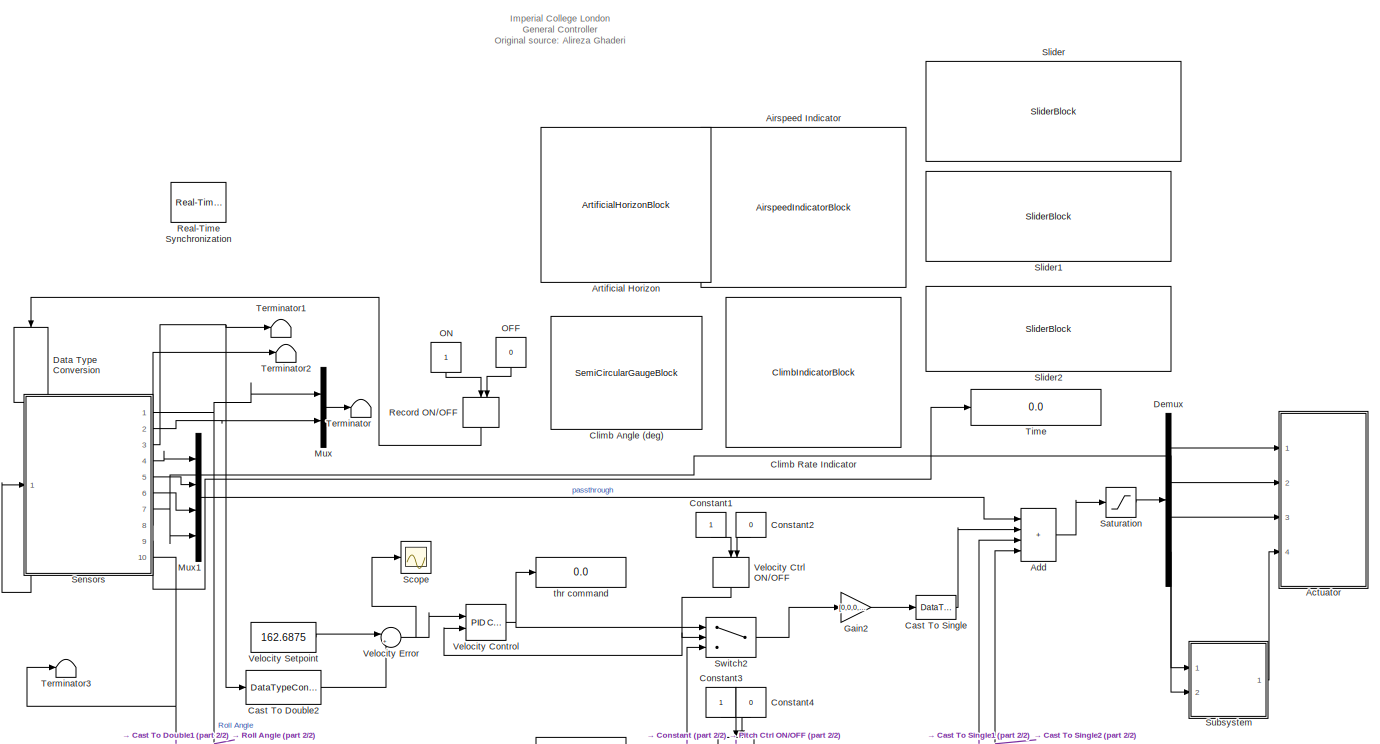
[diagram: root canvas - part 1/2, full width, middle band]
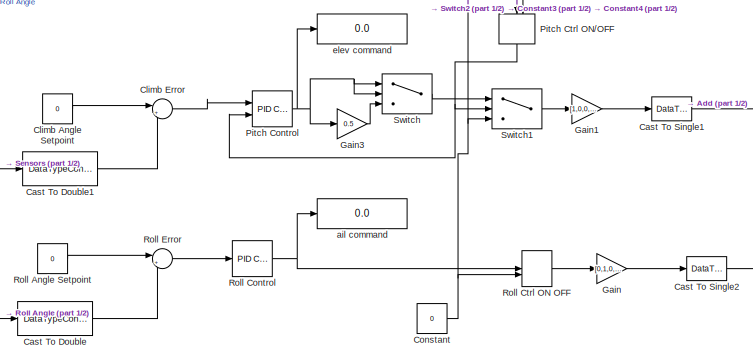
[diagram: root canvas - part 2/2, bottom center region]
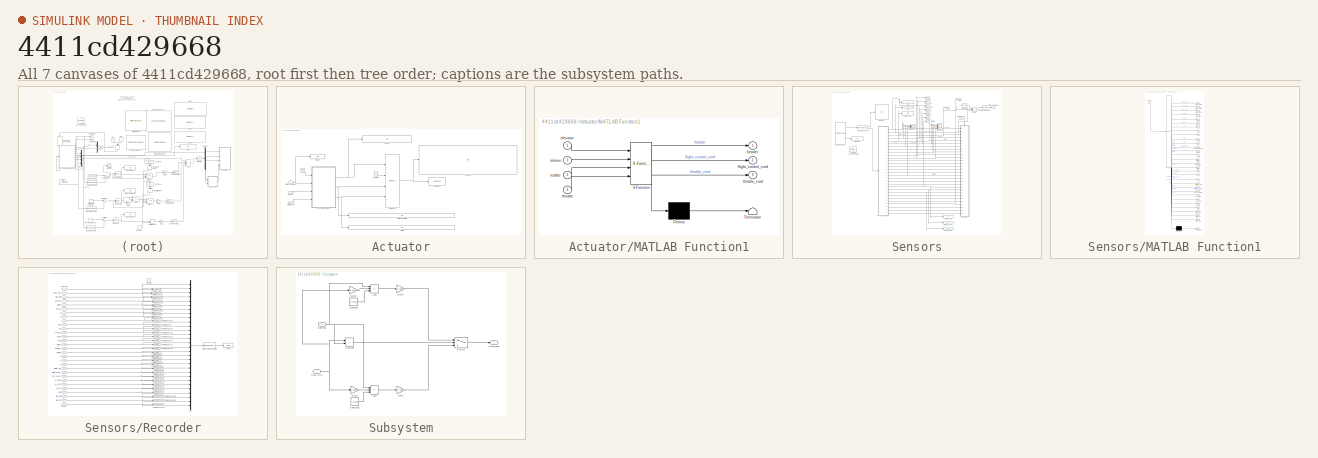
[diagram: thumbnail index - all 7 canvases of the model, root first then tree order]
MODEL slx_4411cd429668
KIND model
CONFIG AbsTol = auto
CONFIG EnableMultiTasking = off
CONFIG FixedStep = auto
CONFIG MaxStep = auto
CONFIG MinStep = auto
CONFIG RelTol = 1e-3
CONFIG SampleTimeConstraint = Unconstrained
CONFIG SolverName = ode45
CONFIG StartTime = 0.0
CONFIG StopTime = inf
BLOCK [SubSystem] Actuator
  Ports = [4]
  RequestExecContextInheritance = off
BLOCK [Constant] Actuator/1 byte [0]
  OutDataTypeStr = uint8
  Value = [48]
BLOCK [Inport] Actuator/Aileron Command
  Port = 2
BLOCK [Reference] Actuator/Byte Pack  REF=etargetslib/Byte Pack
  Ports = [4, 1]
  SourceBlock = etargetslib/Byte Pack
  SourceProductBaseCode = ME
  SourceType = Byte pack
BLOCK [Display] Actuator/Display
  Decimation = 1
  Ports = [1]
BLOCK [SubSystem] Actuator/MATLAB Function1
  ErrorFcn = Stateflow.Translate.translate
  PermitHierarchicalResolution = ExplicitOnly
  Ports = [4, 3]
  RequestExecContextInheritance = off
  SFBlockType = MATLAB Function
  TreatAsAtomicUnit = on
BLOCK [Demux] Actuator/MATLAB Function1/ Demux 
  Outputs = 1
  Ports = [1, 1]
BLOCK [S-Function] Actuator/MATLAB Function1/ SFunction 
  EnableBusSupport = on
  FunctionName = sf_sfun
  PortCounts = [4 4]
  Ports = [4, 4]
  SFcnIsStateOwnerBlock = off
  SFunctionDeploymentMode = off
  Tag = Stateflow S-Function 1
BLOCK [Terminator] Actuator/MATLAB Function1/ Terminator 
BLOCK [Inport] Actuator/MATLAB Function1/aileron
  Port = 2
BLOCK [Inport] Actuator/MATLAB Function1/elevator
BLOCK [Outport] Actuator/MATLAB Function1/flight_control_cmd
  Port = 2
BLOCK [Outport] Actuator/MATLAB Function1/header
BLOCK [Inport] Actuator/MATLAB Function1/rudder
  Port = 3
BLOCK [Inport] Actuator/MATLAB Function1/throttle
  Port = 4
BLOCK [Outport] Actuator/MATLAB Function1/throttle_cmd
  Port = 3
BLOCK [Display] Actuator/Packet
  Decimation = 1
  Ports = [1]
BLOCK [Inport] Actuator/Rudder 
  Port = 3
BLOCK [Display] Actuator/Surface Controls
  Decimation = 1
  Ports = [1]
BLOCK [Display] Actuator/Throttle
  Decimation = 1
  Ports = [1]
BLOCK [Inport] Actuator/Throttle_cmd
  Port = 4
BLOCK [Reference] Actuator/UDP Send  REF=dspnetwork/UDP Send
  Ports = [1]
  SourceBlock = dspnetwork/UDP Send
  SourceProductBaseCode = SL
  SourceType = UDP Send
BLOCK [Inport] Actuator/elevator
BLOCK [Display] Actuator/header
  Decimation = 1
  Ports = [1]
BLOCK [Sum] Add
  IconShape = rectangular
  Inputs = ++++
  Ports = [4, 1]
BLOCK [AirspeedIndicatorBlock] Airspeed Indicator
  LabelPosition = Hide
  ScaleMax = 450
  ScaleMin = 0
BLOCK [ArtificialHorizonBlock] Artificial Horizon
  LabelPosition = Hide
BLOCK [DataTypeConversion] Cast To Double
  OutDataTypeStr = double
  RndMeth = Floor
  SaturateOnIntegerOverflow = off
BLOCK [DataTypeConversion] Cast To Double1
  OutDataTypeStr = double
  RndMeth = Floor
  SaturateOnIntegerOverflow = off
BLOCK [DataTypeConversion] Cast To Double2
  OutDataTypeStr = double
  RndMeth = Floor
  SaturateOnIntegerOverflow = off
BLOCK [DataTypeConversion] Cast To Single
  OutDataTypeStr = single
  RndMeth = Floor
  SaturateOnIntegerOverflow = off
BLOCK [DataTypeConversion] Cast To Single1
  OutDataTypeStr = single
  RndMeth = Floor
  SaturateOnIntegerOverflow = off
BLOCK [DataTypeConversion] Cast To Single2
  OutDataTypeStr = single
  RndMeth = Floor
  SaturateOnIntegerOverflow = off
BLOCK [SemiCircularGaugeBlock] Climb Angle (deg)
  ScaleMax = 20
  ScaleMin = -20
BLOCK [Constant] Climb Angle Setpoint
  Value = 0
BLOCK [Sum] Climb Error
  Inputs = |+-
  Ports = [2, 1]
BLOCK [ClimbIndicatorBlock] Climb Rate Indicator
BLOCK [Constant] Constant
  Value = 0
BLOCK [Constant] Constant1
  NameLocation = left
BLOCK [Constant] Constant2
  NameLocation = right
  Value = 0
BLOCK [Constant] Constant3
  NameLocation = left
BLOCK [Constant] Constant4
  NameLocation = right
  Value = 0
BLOCK [DataTypeConversion] Data Type Conversion
  NameLocation = left
  OutDataTypeStr = boolean
  RndMeth = Floor
  SaturateOnIntegerOverflow = off
BLOCK [Demux] Demux
  Ports = [1, 4]
BLOCK [Gain] Gain
  Gain = [0,1,0,0]
BLOCK [Gain] Gain1
  Gain = [1,0,0,0]
BLOCK [Gain] Gain2
  Gain = [0,0,0,1]
BLOCK [Gain] Gain3
  Gain = 0.5
BLOCK [Mux] Mux
  DisplayOption = bar
  Inputs = 2
  Ports = [2, 1]
BLOCK [Mux] Mux1
  DisplayOption = bar
  Ports = [4, 1]
BLOCK [Constant] OFF
  NameLocation = left
  Value = 0
BLOCK [Constant] ON
  NameLocation = left
BLOCK [Reference] Pitch Control  REF=pid_lib/PID Controller
  Ports = [2, 1]
  SourceBlock = pid_lib/PID Controller
  SourceProductBaseCode = SL
  SourceType = PID 1dof
BLOCK [ManualSwitch] Pitch Ctrl ON//OFF
  CurrentSetting = 0
  NameLocation = left
BLOCK [Reference] Real-Time Synchronization  REF=sldrtlib/Real-Time
Synchronization
  Ports = []
  SourceBlock = sldrtlib/Real-Time\nSynchronization
  SourceProductBaseCode = WT
  SourceType = Simulink Desktop Real-Time Synchronization
BLOCK [ManualSwitch] Record ON//OFF
  CurrentSetting = 0
  NameLocation = left
BLOCK [Constant] Roll Angle Setpoint
  Value = 0
BLOCK [Reference] Roll Control  REF=pid_lib/PID Controller
  Ports = [1, 1]
  SourceBlock = pid_lib/PID Controller
  SourceProductBaseCode = SL
  SourceType = PID 1dof
BLOCK [ManualSwitch] Roll Ctrl ON OFF
  CurrentSetting = 0
BLOCK [Sum] Roll Error
  Inputs = |+-
  Ports = [2, 1]
BLOCK [Saturate] Saturation
  LowerLimit = [-1,-1,-1,0]
  UpperLimit = [1,1,1,1]
BLOCK [Scope] Scope
  Floating = off
  NumInputPorts = 1
  Ports = [1]
  ScopeSpecificationString = Simulink.scopes.TimeScopeBlockCfg('CurrentConfiguration', extmgr.ConfigurationSet(extmgr.Configuration('Core','General UI',true),extmgr.Configuration('Core','Source UI',true),extmgr.Configuration('Sources','WiredSimulink',true,'DataLoggingVariableName','ScopeData1'),extmgr.Configuration('Visuals','Time Domain',true,'SerializedDisplays',{struct('MinYLimReal','202.38879','MaxYLimReal','205.94817','Y...<+1416ch>
BLOCK [SubSystem] Sensors
  Ports = [1, 10]
  RequestExecContextInheritance = off
BLOCK [Outport] Sensors/%aileron
  Port = 5
BLOCK [Outport] Sensors/%elevator
  Port = 4
BLOCK [Outport] Sensors/%rudder
  Port = 6
BLOCK [Outport] Sensors/%throttle
  Port = 7
BLOCK [Display] Sensors/Aileron Test
  Decimation = 1
  Ports = [1]
BLOCK [Reference] Sensors/Byte Unpack1  REF=etargetslib/Byte Unpack
  Ports = [1, 2]
  SourceBlock = etargetslib/Byte Unpack
  SourceProductBaseCode = ME
  SourceType = Byte Unpack
BLOCK [Outport] Sensors/Climb Angle (deg)
  Port = 10
BLOCK [Constant] Sensors/Constant
  Value = 0.00987473002
BLOCK [Inport] Sensors/Data Record
BLOCK [Scope] Sensors/Directional
  Floating = off
  NumInputPorts = 5
  Ports = [5]
  ScopeSpecificationString = Simulink.scopes.TimeScopeBlockCfg('CurrentConfiguration', extmgr.ConfigurationSet(extmgr.Configuration('Core','General UI',true),extmgr.Configuration('Core','Source UI',true),extmgr.Configuration('Sources','WiredSimulink',true,'DataLoggingVariableName','ScopeData1'),extmgr.Configuration('Visuals','Time Domain',true,'SerializedDisplays',{struct('MinYLimReal','-0.00000000043','MaxYLimReal','-0.00000...<+4094ch>
BLOCK [Display] Sensors/Display1
  Decimation = 1
  Ports = [1]
BLOCK [Product] Sensors/Divide
  Inputs = **/
  Ports = [3, 1]
BLOCK [Display] Sensors/Header
  Decimation = 1
  Ports = [1]
BLOCK [Display] Sensors/IAS
  Decimation = 1
  Ports = [1]
BLOCK [Scope] Sensors/Longitudinal
  Floating = off
  NumInputPorts = 4
  Ports = [4]
  ScopeSpecificationString = Simulink.scopes.TimeScopeBlockCfg('CurrentConfiguration', extmgr.ConfigurationSet(extmgr.Configuration('Core','General UI',true),extmgr.Configuration('Core','Source UI',true),extmgr.Configuration('Sources','WiredSimulink',true,'DataLoggingVariableName','ScopeData2'),extmgr.Configuration('Visuals','Time Domain',true,'SerializedDisplays',{struct('MinYLimReal','82.84377','MaxYLimReal','282.84377','YL...<+3446ch>
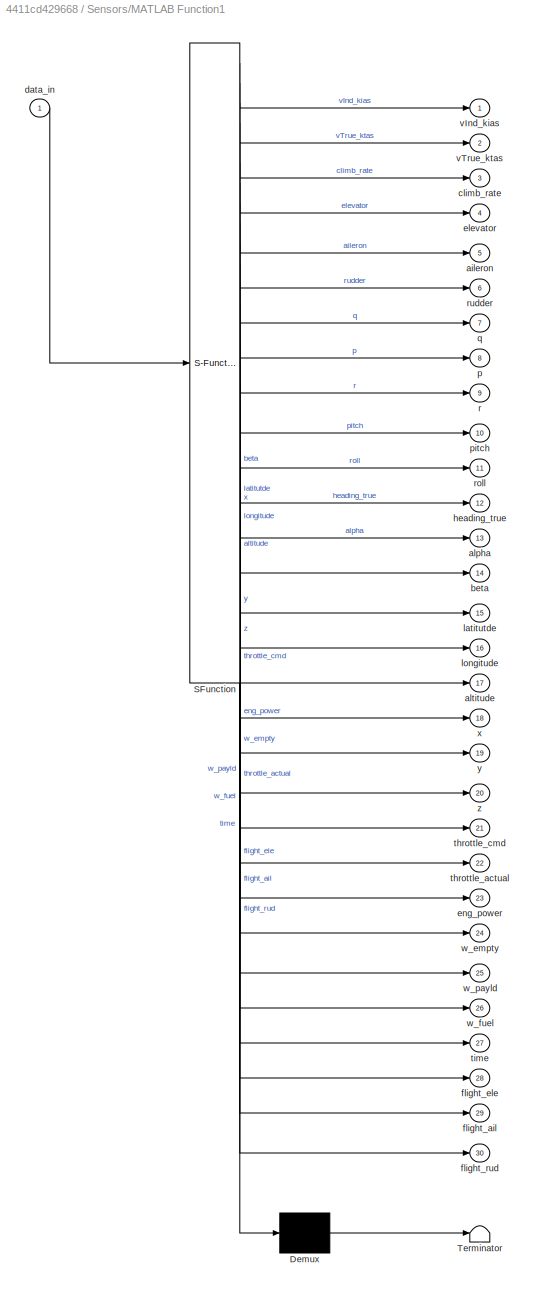
BLOCK [SubSystem] Sensors/MATLAB Function1
  ErrorFcn = Stateflow.Translate.translate
  PermitHierarchicalResolution = ExplicitOnly
  Ports = [1, 30]
  RequestExecContextInheritance = off
  SFBlockType = MATLAB Function
  TreatAsAtomicUnit = on
BLOCK [Demux] Sensors/MATLAB Function1/ Demux 
  Outputs = 1
  Ports = [1, 1]
BLOCK [S-Function] Sensors/MATLAB Function1/ SFunction 
  EnableBusSupport = on
  FunctionName = sf_sfun
  PortCounts = [1 31]
  Ports = [1, 31]
  SFcnIsStateOwnerBlock = off
  SFunctionDeploymentMode = off
  Tag = Stateflow S-Function 3
BLOCK [Terminator] Sensors/MATLAB Function1/ Terminator 
BLOCK [Outport] Sensors/MATLAB Function1/aileron
  Port = 5
BLOCK [Outport] Sensors/MATLAB Function1/alpha
  Port = 13
BLOCK [Outport] Sensors/MATLAB Function1/altitude
  Port = 17
BLOCK [Outport] Sensors/MATLAB Function1/beta
  Port = 14
BLOCK [Outport] Sensors/MATLAB Function1/climb_rate
  Port = 3
BLOCK [Inport] Sensors/MATLAB Function1/data_in
BLOCK [Outport] Sensors/MATLAB Function1/elevator
  Port = 4
BLOCK [Outport] Sensors/MATLAB Function1/eng_power
  Port = 23
BLOCK [Outport] Sensors/MATLAB Function1/flight_ail
  Port = 29
BLOCK [Outport] Sensors/MATLAB Function1/flight_ele
  Port = 28
BLOCK [Outport] Sensors/MATLAB Function1/flight_rud
  Port = 30
BLOCK [Outport] Sensors/MATLAB Function1/heading_true
  Port = 12
BLOCK [Outport] Sensors/MATLAB Function1/latitutde
  Port = 15
BLOCK [Outport] Sensors/MATLAB Function1/longitude
  Port = 16
BLOCK [Outport] Sensors/MATLAB Function1/p
  Port = 8
BLOCK [Outport] Sensors/MATLAB Function1/pitch
  Port = 10
BLOCK [Outport] Sensors/MATLAB Function1/q
  Port = 7
BLOCK [Outport] Sensors/MATLAB Function1/r
  Port = 9
BLOCK [Outport] Sensors/MATLAB Function1/roll
  Port = 11
BLOCK [Outport] Sensors/MATLAB Function1/rudder
  Port = 6
BLOCK [Outport] Sensors/MATLAB Function1/throttle_actual
  Port = 22
BLOCK [Outport] Sensors/MATLAB Function1/throttle_cmd
  Port = 21
  VectorParamsAs1DForOutWhenUnconnected = off
BLOCK [Outport] Sensors/MATLAB Function1/time
  Port = 27
BLOCK [Outport] Sensors/MATLAB Function1/vInd_kias
BLOCK [Outport] Sensors/MATLAB Function1/vTrue_ktas
  Port = 2
BLOCK [Outport] Sensors/MATLAB Function1/w_empty
  Port = 24
BLOCK [Outport] Sensors/MATLAB Function1/w_fuel
  Port = 26
BLOCK [Outport] Sensors/MATLAB Function1/w_payld
  Port = 25
BLOCK [Outport] Sensors/MATLAB Function1/x
  Port = 18
BLOCK [Outport] Sensors/MATLAB Function1/y
  Port = 19
BLOCK [Outport] Sensors/MATLAB Function1/z
  Port = 20
BLOCK [Reference] Sensors/Radians to Degrees  REF=simulink_extras/Transformations/Radians
to Degrees
  Ports = [1, 1]
  SourceBlock = simulink_extras/Transformations/Radians\nto Degrees
  SourceProductBaseCode = SL
  SourceType = RadiansToDegrees
BLOCK [Reference] Sensors/Real-Time Synchronization  REF=sldrtlib/Real-Time
Synchronization
  Ports = []
  SourceBlock = sldrtlib/Real-Time\nSynchronization
  SourceProductBaseCode = WT
  SourceType = Simulink Desktop Real-Time Synchronization
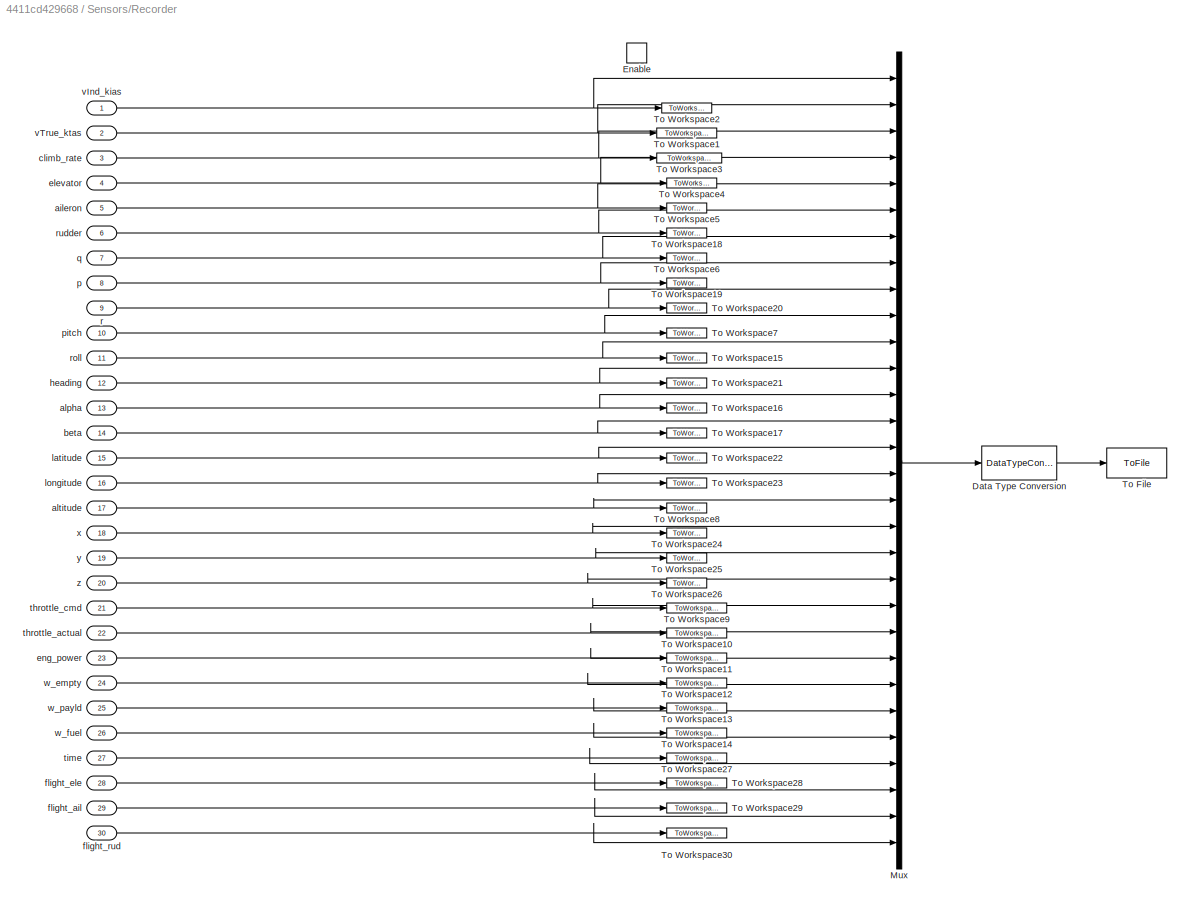
BLOCK [SubSystem] Sensors/Recorder
  Ports = [30, 0, 1]
  RequestExecContextInheritance = off
BLOCK [DataTypeConversion] Sensors/Recorder/Data Type Conversion
  OutDataTypeStr = double
  RndMeth = Floor
  SaturateOnIntegerOverflow = off
BLOCK [EnablePort] Sensors/Recorder/Enable
  Ports = []
BLOCK [Mux] Sensors/Recorder/Mux
  DisplayOption = bar
  Inputs = 30
  Ports = [30, 1]
BLOCK [ToFile] Sensors/Recorder/To File
  MatrixName = data
  Ports = [1]
  SaveFormat = Timeseries
BLOCK [ToWorkspace] Sensors/Recorder/To Workspace1
  FixptAsFi = on
  MaxDataPoints = inf
  Ports = [1]
  SampleTime = -1
  VariableName = vTrue_ktas
BLOCK [ToWorkspace] Sensors/Recorder/To Workspace10
  FixptAsFi = on
  MaxDataPoints = inf
  Ports = [1]
  SampleTime = -1
  VariableName = throttle_actual
BLOCK [ToWorkspace] Sensors/Recorder/To Workspace11
  FixptAsFi = on
  MaxDataPoints = inf
  Ports = [1]
  SampleTime = -1
  VariableName = eng_power
BLOCK [ToWorkspace] Sensors/Recorder/To Workspace12
  FixptAsFi = on
  MaxDataPoints = inf
  Ports = [1]
  SampleTime = -1
  VariableName = w_empty
BLOCK [ToWorkspace] Sensors/Recorder/To Workspace13
  FixptAsFi = on
  MaxDataPoints = inf
  Ports = [1]
  SampleTime = -1
  VariableName = w_payld
BLOCK [ToWorkspace] Sensors/Recorder/To Workspace14
  FixptAsFi = on
  MaxDataPoints = inf
  Ports = [1]
  SampleTime = -1
  VariableName = w_fuel
BLOCK [ToWorkspace] Sensors/Recorder/To Workspace15
  FixptAsFi = on
  MaxDataPoints = inf
  Ports = [1]
  SampleTime = -1
  VariableName = roll
BLOCK [ToWorkspace] Sensors/Recorder/To Workspace16
  FixptAsFi = on
  MaxDataPoints = inf
  Ports = [1]
  SampleTime = -1
  VariableName = alpha
BLOCK [ToWorkspace] Sensors/Recorder/To Workspace17
  FixptAsFi = on
  MaxDataPoints = inf
  Ports = [1]
  SampleTime = -1
  VariableName = beta
BLOCK [ToWorkspace] Sensors/Recorder/To Workspace18
  FixptAsFi = on
  MaxDataPoints = inf
  Ports = [1]
  SampleTime = -1
  VariableName = rudder
BLOCK [ToWorkspace] Sensors/Recorder/To Workspace19
  FixptAsFi = on
  MaxDataPoints = inf
  Ports = [1]
  SampleTime = -1
  VariableName = p
BLOCK [ToWorkspace] Sensors/Recorder/To Workspace2
  FixptAsFi = on
  MaxDataPoints = inf
  Ports = [1]
  SampleTime = -1
  VariableName = vInd_kias
BLOCK [ToWorkspace] Sensors/Recorder/To Workspace20
  FixptAsFi = on
  MaxDataPoints = inf
  Ports = [1]
  SampleTime = -1
  VariableName = r
BLOCK [ToWorkspace] Sensors/Recorder/To Workspace21
  FixptAsFi = on
  MaxDataPoints = inf
  Ports = [1]
  SampleTime = -1
  VariableName = heading
BLOCK [ToWorkspace] Sensors/Recorder/To Workspace22
  FixptAsFi = on
  MaxDataPoints = inf
  Ports = [1]
  SampleTime = -1
  VariableName = latitude
BLOCK [ToWorkspace] Sensors/Recorder/To Workspace23
  FixptAsFi = on
  MaxDataPoints = inf
  Ports = [1]
  SampleTime = -1
  VariableName = longitude
BLOCK [ToWorkspace] Sensors/Recorder/To Workspace24
  FixptAsFi = on
  MaxDataPoints = inf
  Ports = [1]
  SampleTime = -1
  VariableName = x
BLOCK [ToWorkspace] Sensors/Recorder/To Workspace25
  FixptAsFi = on
  MaxDataPoints = inf
  Ports = [1]
  SampleTime = -1
  VariableName = y
BLOCK [ToWorkspace] Sensors/Recorder/To Workspace26
  FixptAsFi = on
  MaxDataPoints = inf
  Ports = [1]
  SampleTime = -1
  VariableName = z
BLOCK [ToWorkspace] Sensors/Recorder/To Workspace27
  FixptAsFi = on
  MaxDataPoints = inf
  Ports = [1]
  SampleTime = -1
  VariableName = time
BLOCK [ToWorkspace] Sensors/Recorder/To Workspace28
  FixptAsFi = on
  MaxDataPoints = inf
  Ports = [1]
  SampleTime = -1
  VariableName = flight_ele
BLOCK [ToWorkspace] Sensors/Recorder/To Workspace29
  FixptAsFi = on
  MaxDataPoints = inf
  Ports = [1]
  SampleTime = -1
  VariableName = flight_ail
BLOCK [ToWorkspace] Sensors/Recorder/To Workspace3
  FixptAsFi = on
  MaxDataPoints = inf
  Ports = [1]
  SampleTime = -1
  VariableName = climb_rate
BLOCK [ToWorkspace] Sensors/Recorder/To Workspace30
  FixptAsFi = on
  MaxDataPoints = inf
  Ports = [1]
  SampleTime = -1
  VariableName = flight_rud
BLOCK [ToWorkspace] Sensors/Recorder/To Workspace4
  FixptAsFi = on
  MaxDataPoints = inf
  Ports = [1]
  SampleTime = -1
  VariableName = elevator
BLOCK [ToWorkspace] Sensors/Recorder/To Workspace5
  FixptAsFi = on
  MaxDataPoints = inf
  Ports = [1]
  SampleTime = -1
  VariableName = aileron
BLOCK [ToWorkspace] Sensors/Recorder/To Workspace6
  FixptAsFi = on
  MaxDataPoints = inf
  Ports = [1]
  SampleTime = -1
  VariableName = q
BLOCK [ToWorkspace] Sensors/Recorder/To Workspace7
  FixptAsFi = on
  MaxDataPoints = inf
  Ports = [1]
  SampleTime = -1
  VariableName = pitch
BLOCK [ToWorkspace] Sensors/Recorder/To Workspace8
  FixptAsFi = on
  MaxDataPoints = inf
  Ports = [1]
  SampleTime = -1
  VariableName = altitude
BLOCK [ToWorkspace] Sensors/Recorder/To Workspace9
  FixptAsFi = on
  MaxDataPoints = inf
  Ports = [1]
  SampleTime = -1
  VariableName = throttle_cmd
BLOCK [Inport] Sensors/Recorder/aileron
  Port = 5
BLOCK [Inport] Sensors/Recorder/alpha
  Port = 13
BLOCK [Inport] Sensors/Recorder/altitude
  Port = 17
BLOCK [Inport] Sensors/Recorder/beta
  Port = 14
BLOCK [Inport] Sensors/Recorder/climb_rate
  Port = 3
BLOCK [Inport] Sensors/Recorder/elevator
  Port = 4
BLOCK [Inport] Sensors/Recorder/eng_power
  Port = 23
BLOCK [Inport] Sensors/Recorder/flight_ail
  Port = 29
BLOCK [Inport] Sensors/Recorder/flight_ele
  Port = 28
BLOCK [Inport] Sensors/Recorder/flight_rud
  Port = 30
BLOCK [Inport] Sensors/Recorder/heading
  Port = 12
BLOCK [Inport] Sensors/Recorder/latitude
  Port = 15
BLOCK [Inport] Sensors/Recorder/longitude
  Port = 16
BLOCK [Inport] Sensors/Recorder/p
  Port = 8
BLOCK [Inport] Sensors/Recorder/pitch
  Port = 10
BLOCK [Inport] Sensors/Recorder/q
  Port = 7
BLOCK [Inport] Sensors/Recorder/r
  Port = 9
BLOCK [Inport] Sensors/Recorder/roll
  Port = 11
BLOCK [Inport] Sensors/Recorder/rudder
  Port = 6
BLOCK [Inport] Sensors/Recorder/throttle_actual
  Port = 22
BLOCK [Inport] Sensors/Recorder/throttle_cmd
  Port = 21
BLOCK [Inport] Sensors/Recorder/time
  Port = 27
BLOCK [Inport] Sensors/Recorder/vInd_kias
BLOCK [Inport] Sensors/Recorder/vTrue_ktas
  Port = 2
BLOCK [Inport] Sensors/Recorder/w_empty
  Port = 24
BLOCK [Inport] Sensors/Recorder/w_fuel
  Port = 26
BLOCK [Inport] Sensors/Recorder/w_payld
  Port = 25
BLOCK [Inport] Sensors/Recorder/x
  Port = 18
BLOCK [Inport] Sensors/Recorder/y
  Port = 19
BLOCK [Inport] Sensors/Recorder/z
  Port = 20
BLOCK [Outport] Sensors/RoC
  Port = 8
BLOCK [Display] Sensors/TAS
  Decimation = 1
  Ports = [1]
BLOCK [Outport] Sensors/Time
  Port = 9
BLOCK [Reference] Sensors/UDP Receive1  REF=dspnetwork/UDP Receive
  Ports = [0, 2]
  SourceBlock = dspnetwork/UDP Receive
  SourceProductBaseCode = SL
  SourceType = UDP Receive
BLOCK [Outport] Sensors/Velocity_kias
  Port = 3
BLOCK [Display] Sensors/eng_power
  Decimation = 1
  Ports = [1]
BLOCK [Outport] Sensors/pitch_deg
  Port = 2
BLOCK [Outport] Sensors/roll_deg
BLOCK [Display] Sensors/throttle_actual
  Decimation = 1
  Ports = [1]
BLOCK [Display] Sensors/throttle_cmd
  Decimation = 1
  Ports = [1]
BLOCK [SliderBlock] Slider
  ScaleMax = 400
  ScaleMin = 100
BLOCK [SliderBlock] Slider1
  ScaleMax = 10
  ScaleMin = -10
  TickInterval = 2
BLOCK [SliderBlock] Slider2
  ScaleMax = 45
  ScaleMin = -45
BLOCK [SubSystem] Subsystem
  Ports = [2, 1]
  RequestExecContextInheritance = off
BLOCK [Sum] Subsystem/Add
  IconShape = rectangular
  Inputs = +--
  Ports = [3, 1]
BLOCK [Sum] Subsystem/Add1
  IconShape = rectangular
  Inputs = +--
  Ports = [3, 1]
BLOCK [Outport] Subsystem/Command
BLOCK [Constant] Subsystem/Constant
  Value = 0.0264
BLOCK [Constant] Subsystem/Constant1
  Value = -0.3348
BLOCK [Inport] Subsystem/Desired
  Port = 2
BLOCK [Gain] Subsystem/Gain
  Gain = 1/1.0037
BLOCK [Gain] Subsystem/Gain1
  Gain = 0.0007
BLOCK [Gain] Subsystem/Gain2
  Gain = 1/0.9888
BLOCK [Gain] Subsystem/Gain3
  Gain = 0.0117
BLOCK [Sum] Subsystem/Subtract
  IconShape = rectangular
  Inputs = +-
  Ports = [2, 1]
BLOCK [Switch] Subsystem/Switch
  Criteria = u2 > Threshold
  InputSameDT = off
  SaturateOnIntegerOverflow = off
BLOCK [Inport] Subsystem/from Sim
BLOCK [Switch] Switch
  Criteria = u2 > Threshold
  InputSameDT = off
  SaturateOnIntegerOverflow = off
BLOCK [Switch] Switch1
  Criteria = u2 ~= 0
  InputSameDT = off
  SaturateOnIntegerOverflow = off
BLOCK [Switch] Switch2
  Criteria = u2 ~= 0
  InputSameDT = off
  SaturateOnIntegerOverflow = off
BLOCK [Terminator] Terminator
BLOCK [Terminator] Terminator1
BLOCK [Terminator] Terminator2
BLOCK [Terminator] Terminator3
BLOCK [Display] Time
  Decimation = 1
  Format = long
  Ports = [1]
BLOCK [Reference] Velocity Control  REF=pid_lib/PID Controller
  Ports = [2, 1]
  SourceBlock = pid_lib/PID Controller
  SourceProductBaseCode = SL
  SourceType = PID 1dof
BLOCK [ManualSwitch] Velocity Ctrl ON//OFF
  CurrentSetting = 0
  NameLocation = left
BLOCK [Sum] Velocity Error
  Inputs = |+-
  Ports = [2, 1]
BLOCK [Constant] Velocity Setpoint
  Value = 162.6875
BLOCK [Display] ail command
  Decimation = 1
  Ports = [1]
BLOCK [Display] elev command
  Decimation = 1
  Ports = [1]
BLOCK [Display] thr command
  Decimation = 1
  Ports = [1]
ANNOTATION (root): Imperial College London General Controller Original source: Alireza Ghaderi
LINE Actuator/1 byte [0]:1 -> Actuator/Byte Pack:2
NET Actuator/Aileron Command:1 -> Actuator/Display:1, Actuator/MATLAB Function1:2
NET Actuator/Byte Pack:1 -> Actuator/Packet:1, Actuator/UDP Send:1
NET Actuator/MATLAB Function1:1 -> Actuator/Byte Pack:1, Actuator/header:1
NET Actuator/MATLAB Function1:2 -> Actuator/Byte Pack:3, Actuator/Surface Controls:1
NET Actuator/MATLAB Function1:3 -> Actuator/Byte Pack:4, Actuator/Throttle:1
LINE Actuator/Rudder :1 -> Actuator/MATLAB Function1:3
LINE Actuator/Throttle_cmd:1 -> Actuator/MATLAB Function1:4
LINE Actuator/elevator:1 -> Actuator/MATLAB Function1:1
LINE Add:1 -> Saturation:1
LINE Cast To Double1:1 -> Climb Error:2
LINE Cast To Double2:1 -> Velocity Error:2
LINE Cast To Double:1 -> Roll Error:2
LINE Cast To Single1:1 -> Add:3
LINE Cast To Single2:1 -> Add:4
LINE Cast To Single:1 -> Add:2
LINE Climb Angle Setpoint:1 -> Climb Error:1
LINE Climb Error:1 -> Pitch Control:1
LINE Constant1:1 -> Velocity Ctrl ON//OFF:1
LINE Constant2:1 -> Velocity Ctrl ON//OFF:2
LINE Constant3:1 -> Pitch Ctrl ON//OFF:1
LINE Constant4:1 -> Pitch Ctrl ON//OFF:2
NET Constant:1 -> Roll Ctrl ON OFF:2, Switch1:3, Switch2:3
LINE Data Type Conversion:1 -> Sensors:1
LINE Demux:1 -> Actuator:1
LINE Demux:2 -> Actuator:2
LINE Demux:3 -> Actuator:3
LINE Demux:4 -> Subsystem:2
LINE Gain1:1 -> Cast To Single1:1
LINE Gain2:1 -> Cast To Single:1
LINE Gain3:1 -> Switch:3
LINE Gain:1 -> Cast To Single2:1
LINE Mux1:1 -> Add:1
LINE Mux:1 -> Terminator:1
LINE OFF:1 -> Record ON//OFF:2
LINE ON:1 -> Record ON//OFF:1
NET Pitch Control:1 -> Gain3:1, Switch:1, Switch:2, elev command:1
NET Pitch Ctrl ON//OFF:1 -> Pitch Control:2, Switch1:2
LINE Record ON//OFF:1 -> Data Type Conversion:1
LINE Roll Angle Setpoint:1 -> Roll Error:1
NET Roll Control:1 -> Roll Ctrl ON OFF:1, ail command:1
LINE Roll Ctrl ON OFF:1 -> Gain:1
LINE Roll Error:1 -> Roll Control:1
LINE Saturation:1 -> Demux:1
LINE Sensors/Byte Unpack1:1 -> Sensors/Header:1
LINE Sensors/Byte Unpack1:2 -> Sensors/MATLAB Function1:1
LINE Sensors/Constant:1 -> Sensors/Divide:1
LINE Sensors/Data Record:1 -> Sensors/Recorder:enable
LINE Sensors/Divide:1 -> Sensors/Radians to Degrees:1
NET Sensors/MATLAB Function1:1 -> Sensors/IAS:1, Sensors/Longitudinal:1, Sensors/Recorder:1, Sensors/Velocity_kias:1
NET Sensors/MATLAB Function1:10 -> Sensors/Recorder:10, Sensors/pitch_deg:1
NET Sensors/MATLAB Function1:11 -> Sensors/Directional:5, Sensors/Recorder:11, Sensors/roll_deg:1
LINE Sensors/MATLAB Function1:12 -> Sensors/Recorder:12
LINE Sensors/MATLAB Function1:13 -> Sensors/Recorder:13
LINE Sensors/MATLAB Function1:14 -> Sensors/Recorder:14
LINE Sensors/MATLAB Function1:15 -> Sensors/Recorder:15
LINE Sensors/MATLAB Function1:16 -> Sensors/Recorder:16
NET Sensors/MATLAB Function1:17 -> Sensors/Longitudinal:4, Sensors/Recorder:17
LINE Sensors/MATLAB Function1:18 -> Sensors/Recorder:18
LINE Sensors/MATLAB Function1:19 -> Sensors/Recorder:19
NET Sensors/MATLAB Function1:2 -> Sensors/Divide:3, Sensors/Recorder:2, Sensors/TAS:1
LINE Sensors/MATLAB Function1:20 -> Sensors/Recorder:20
NET Sensors/MATLAB Function1:21 -> Sensors/%throttle:1, Sensors/Recorder:21, Sensors/throttle_cmd:1
NET Sensors/MATLAB Function1:22 -> Sensors/Recorder:22, Sensors/throttle_actual:1
NET Sensors/MATLAB Function1:23 -> Sensors/Recorder:23, Sensors/eng_power:1
LINE Sensors/MATLAB Function1:24 -> Sensors/Recorder:24
LINE Sensors/MATLAB Function1:25 -> Sensors/Recorder:25
LINE Sensors/MATLAB Function1:26 -> Sensors/Recorder:26
NET Sensors/MATLAB Function1:27 -> Sensors/Recorder:27, Sensors/Time:1
LINE Sensors/MATLAB Function1:28 -> Sensors/Recorder:28
LINE Sensors/MATLAB Function1:29 -> Sensors/Recorder:29
NET Sensors/MATLAB Function1:3 -> Sensors/Divide:2, Sensors/Recorder:3, Sensors/RoC:1
LINE Sensors/MATLAB Function1:30 -> Sensors/Recorder:30
NET Sensors/MATLAB Function1:4 -> Sensors/%elevator:1, Sensors/Longitudinal:2, Sensors/Recorder:4
NET Sensors/MATLAB Function1:5 -> Sensors/%aileron:1, Sensors/Aileron Test:1, Sensors/Directional:1, Sensors/Recorder:5
NET Sensors/MATLAB Function1:6 -> Sensors/%rudder:1, Sensors/Directional:2, Sensors/Recorder:6
NET Sensors/MATLAB Function1:7 -> Sensors/Longitudinal:3, Sensors/Recorder:7
NET Sensors/MATLAB Function1:8 -> Sensors/Directional:3, Sensors/Recorder:8
NET Sensors/MATLAB Function1:9 -> Sensors/Directional:4, Sensors/Recorder:9
LINE Sensors/Radians to Degrees:1 -> Sensors/Climb Angle (deg):1
LINE Sensors/Recorder/Data Type Conversion:1 -> Sensors/Recorder/To File:1
LINE Sensors/Recorder/Mux:1 -> Sensors/Recorder/Data Type Conversion:1
NET Sensors/Recorder/aileron:1 -> Sensors/Recorder/Mux:5, Sensors/Recorder/To Workspace5:1
NET Sensors/Recorder/alpha:1 -> Sensors/Recorder/Mux:13, Sensors/Recorder/To Workspace16:1
NET Sensors/Recorder/altitude:1 -> Sensors/Recorder/Mux:17, Sensors/Recorder/To Workspace8:1
NET Sensors/Recorder/beta:1 -> Sensors/Recorder/Mux:14, Sensors/Recorder/To Workspace17:1
NET Sensors/Recorder/climb_rate:1 -> Sensors/Recorder/Mux:3, Sensors/Recorder/To Workspace3:1
NET Sensors/Recorder/elevator:1 -> Sensors/Recorder/Mux:4, Sensors/Recorder/To Workspace4:1
NET Sensors/Recorder/eng_power:1 -> Sensors/Recorder/Mux:23, Sensors/Recorder/To Workspace11:1
NET Sensors/Recorder/flight_ail:1 -> Sensors/Recorder/Mux:29, Sensors/Recorder/To Workspace29:1
NET Sensors/Recorder/flight_ele:1 -> Sensors/Recorder/Mux:28, Sensors/Recorder/To Workspace28:1
NET Sensors/Recorder/flight_rud:1 -> Sensors/Recorder/Mux:30, Sensors/Recorder/To Workspace30:1
NET Sensors/Recorder/heading:1 -> Sensors/Recorder/Mux:12, Sensors/Recorder/To Workspace21:1
NET Sensors/Recorder/latitude:1 -> Sensors/Recorder/Mux:15, Sensors/Recorder/To Workspace22:1
NET Sensors/Recorder/longitude:1 -> Sensors/Recorder/Mux:16, Sensors/Recorder/To Workspace23:1
NET Sensors/Recorder/p:1 -> Sensors/Recorder/Mux:8, Sensors/Recorder/To Workspace19:1
NET Sensors/Recorder/pitch:1 -> Sensors/Recorder/Mux:10, Sensors/Recorder/To Workspace7:1
NET Sensors/Recorder/q:1 -> Sensors/Recorder/Mux:7, Sensors/Recorder/To Workspace6:1
NET Sensors/Recorder/r:1 -> Sensors/Recorder/Mux:9, Sensors/Recorder/To Workspace20:1
NET Sensors/Recorder/roll:1 -> Sensors/Recorder/Mux:11, Sensors/Recorder/To Workspace15:1
NET Sensors/Recorder/rudder:1 -> Sensors/Recorder/Mux:6, Sensors/Recorder/To Workspace18:1
NET Sensors/Recorder/throttle_actual:1 -> Sensors/Recorder/Mux:22, Sensors/Recorder/To Workspace10:1
NET Sensors/Recorder/throttle_cmd:1 -> Sensors/Recorder/Mux:21, Sensors/Recorder/To Workspace9:1
NET Sensors/Recorder/time:1 -> Sensors/Recorder/Mux:27, Sensors/Recorder/To Workspace27:1
NET Sensors/Recorder/vInd_kias:1 -> Sensors/Recorder/Mux:1, Sensors/Recorder/To Workspace2:1
NET Sensors/Recorder/vTrue_ktas:1 -> Sensors/Recorder/Mux:2, Sensors/Recorder/To Workspace1:1
NET Sensors/Recorder/w_empty:1 -> Sensors/Recorder/Mux:24, Sensors/Recorder/To Workspace12:1
NET Sensors/Recorder/w_fuel:1 -> Sensors/Recorder/Mux:26, Sensors/Recorder/To Workspace14:1
NET Sensors/Recorder/w_payld:1 -> Sensors/Recorder/Mux:25, Sensors/Recorder/To Workspace13:1
NET Sensors/Recorder/x:1 -> Sensors/Recorder/Mux:18, Sensors/Recorder/To Workspace24:1
NET Sensors/Recorder/y:1 -> Sensors/Recorder/Mux:19, Sensors/Recorder/To Workspace25:1
NET Sensors/Recorder/z:1 -> Sensors/Recorder/Mux:20, Sensors/Recorder/To Workspace26:1
LINE Sensors/UDP Receive1:1 -> Sensors/Byte Unpack1:1
LINE Sensors/UDP Receive1:2 -> Sensors/Display1:1
NET Sensors:1 -> Cast To Double:1, Mux:1
NET Sensors:10 -> Cast To Double1:1, Terminator3:1
LINE Sensors:2 -> Mux:2
NET Sensors:3 -> Cast To Double2:1, Terminator1:1
LINE Sensors:4 -> Mux1:1
LINE Sensors:5 -> Mux1:2
LINE Sensors:6 -> Mux1:3
NET Sensors:7 -> Mux1:4, Subsystem:1
LINE Sensors:8 -> Terminator2:1
LINE Sensors:9 -> Time:1
LINE Subsystem/Add1:1 -> Subsystem/Gain:1
LINE Subsystem/Add:1 -> Subsystem/Gain2:1
LINE Subsystem/Constant1:1 -> Subsystem/Add1:3
LINE Subsystem/Constant:1 -> Subsystem/Add:3
NET Subsystem/Desired:1 -> Subsystem/Add1:1, Subsystem/Add:1, Subsystem/Subtract:2
LINE Subsystem/Gain1:1 -> Subsystem/Add1:2
LINE Subsystem/Gain2:1 -> Subsystem/Switch:1
LINE Subsystem/Gain3:1 -> Subsystem/Add:2
LINE Subsystem/Gain:1 -> Subsystem/Switch:3
LINE Subsystem/Subtract:1 -> Subsystem/Switch:2
LINE Subsystem/Switch:1 -> Subsystem/Command:1
NET Subsystem/from Sim:1 -> Subsystem/Gain1:1, Subsystem/Gain3:1, Subsystem/Subtract:1
LINE Subsystem:1 -> Actuator:4
LINE Switch1:1 -> Gain1:1
LINE Switch2:1 -> Gain2:1
LINE Switch:1 -> Switch1:1
NET Velocity Control:1 -> Switch2:1, thr command:1
NET Velocity Ctrl ON//OFF:1 -> Switch2:2, Velocity Control:2
NET Velocity Error:1 -> Scope:1, Velocity Control:1
LINE Velocity Setpoint:1 -> Velocity Error:1
note: NET lines group one-source signal fan-out (src -> all destinations, sorted); 1:1 wires keep LINE
CHART Actuator/MATLAB Function1 states=1 transitions=1
  STATE_LABEL 'eML_blk_kernel()'
  STATE_LABEL "SCRIPT:\nfunction [header,flight_control_cmd,throttle_cmd] = fcn(elevator, aileron, rudder, throttle) \nheader =[uint8(68) uint8(65) uint8(84) uint8(65)];\nNo_Comand = single(-999);\n %Surface_header = typecast(uint8([uint8(8) uint8(0) uint8(0) uint8(0)]),'single')\n%surfaces_control_cmd = [1.1210388e-44 elevator aileron rudder No_Comand No_Comand No_Comand No_Comand No_Comand  ];\n%Flight_Control_Surfa...<+520ch>"
CHART Sensors/MATLAB Function1 states=1 transitions=1
  STATE_LABEL 'eML_blk_kernel()'
  STATE_LABEL 'SCRIPT:\nfunction [vInd_kias,vTrue_ktas,...\n    climb_rate,...\n    elevator,aileron,rudder,...\n    q,p,r,...\n    pitch, roll, heading_true,...\n    alpha,beta,...\n    latitutde, longitude, altitude,...\n    x,y,z,...\n    throttle_cmd,...\n    throttle_actual,...\n    eng_power,...\n    w_empty,w_payld,w_fuel,...\n    time,...\n    flight_ele,flight_ail,flight_rud] = decoder(data_in)\n frame_rate = data_in(...<+832ch>'
CHART  states=0 transitions=0
CHART  states=0 transitions=0
